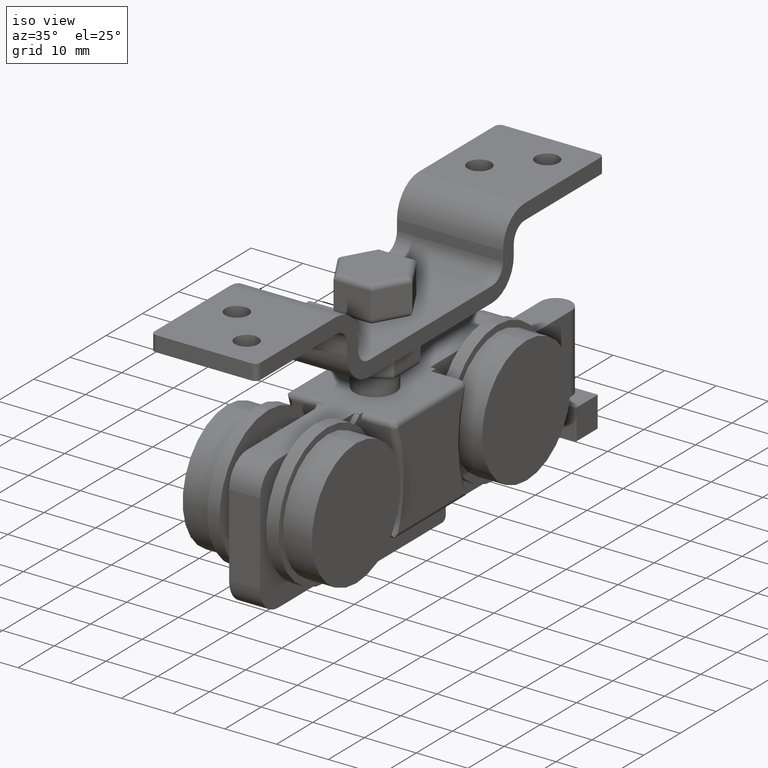
[diagram: clean part render]
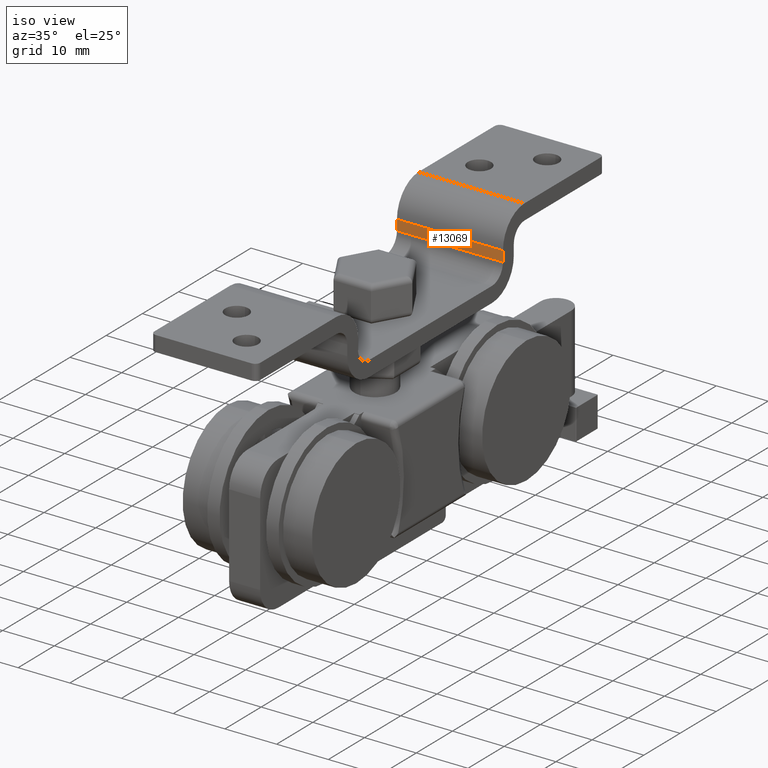
[diagram: same view with one face highlighted and labeled with its STEP entity id]
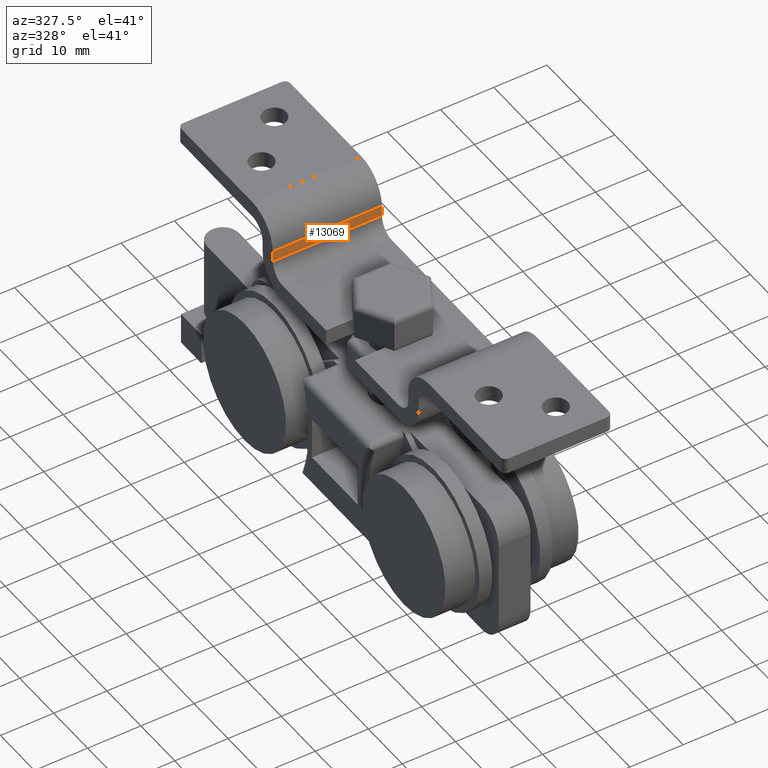
[diagram: same view with one face highlighted and labeled with its STEP entity id]
A machine part, iso view. The second image highlights one B-rep face of the part: STEP entity #13069.
A second angle (auxiliary view) of the same face is appended — the face is thin or edge-on in the first view.
In plain terms, the highlighted planar face has unit normal (0, -1, 0).
Its self-contained STEP definition (entity closure, byte-faithful):
#12506=CARTESIAN_POINT('',(-9.750000000000025,20.000000000000021,43.000000000000014));
#12507=VERTEX_POINT('',#12506);
#12515=CARTESIAN_POINT('',(-9.750000000000025,20.000000000000021,45.000000000000014));
#12516=VERTEX_POINT('',#12515);
#12517=CARTESIAN_POINT('',(-9.750000000000025,20.000000000000021,45.000000000000014));
#12518=DIRECTION('',(0.0,0.0,-1.0));
#12519=VECTOR('',#12518,2.0);
#12520=LINE('',#12517,#12519);
#12521=EDGE_CURVE('',#12516,#12507,#12520,.T.);
#12564=CARTESIAN_POINT('',(10.749999999999979,20.000000000000021,45.000000000000014));
#12565=VERTEX_POINT('',#12564);
#12573=CARTESIAN_POINT('',(10.749999999999979,20.000000000000021,43.000000000000014));
#12574=VERTEX_POINT('',#12573);
#12575=CARTESIAN_POINT('',(10.749999999999979,20.000000000000021,43.000000000000014));
#12576=DIRECTION('',(0.0,0.0,1.0));
#12577=VECTOR('',#12576,2.0);
#12578=LINE('',#12575,#12577);
#12579=EDGE_CURVE('',#12574,#12565,#12578,.T.);
#13048=CARTESIAN_POINT('',(11.774999999999977,20.000000000000021,42.900000000000013));
#13049=DIRECTION('',(0.0,-1.0,0.0));
#13050=DIRECTION('',(0.0,0.0,1.0));
#13051=AXIS2_PLACEMENT_3D('',#13048,#13049,#13050);
#13052=PLANE('',#13051);
#13053=CARTESIAN_POINT('',(10.749999999999979,20.000000000000021,43.000000000000014));
#13054=DIRECTION('',(-1.0,0.0,0.0));
#13055=VECTOR('',#13054,20.500000000000000);
#13056=LINE('',#13053,#13055);
#13057=EDGE_CURVE('',#12574,#12507,#13056,.T.);
#13058=ORIENTED_EDGE('',*,*,#13057,.F.);
#13059=ORIENTED_EDGE('',*,*,#12579,.T.);
#13060=CARTESIAN_POINT('',(10.749999999999979,20.000000000000021,45.000000000000014));
#13061=DIRECTION('',(-1.0,0.0,0.0));
#13062=VECTOR('',#13061,20.500000000000000);
#13063=LINE('',#13060,#13062);
#13064=EDGE_CURVE('',#12565,#12516,#13063,.T.);
#13065=ORIENTED_EDGE('',*,*,#13064,.T.);
#13066=ORIENTED_EDGE('',*,*,#12521,.T.);
#13067=EDGE_LOOP('',(#13058,#13059,#13065,#13066));
#13068=FACE_OUTER_BOUND('',#13067,.T.);
#13069=ADVANCED_FACE('',(#13068),#13052,.T.);